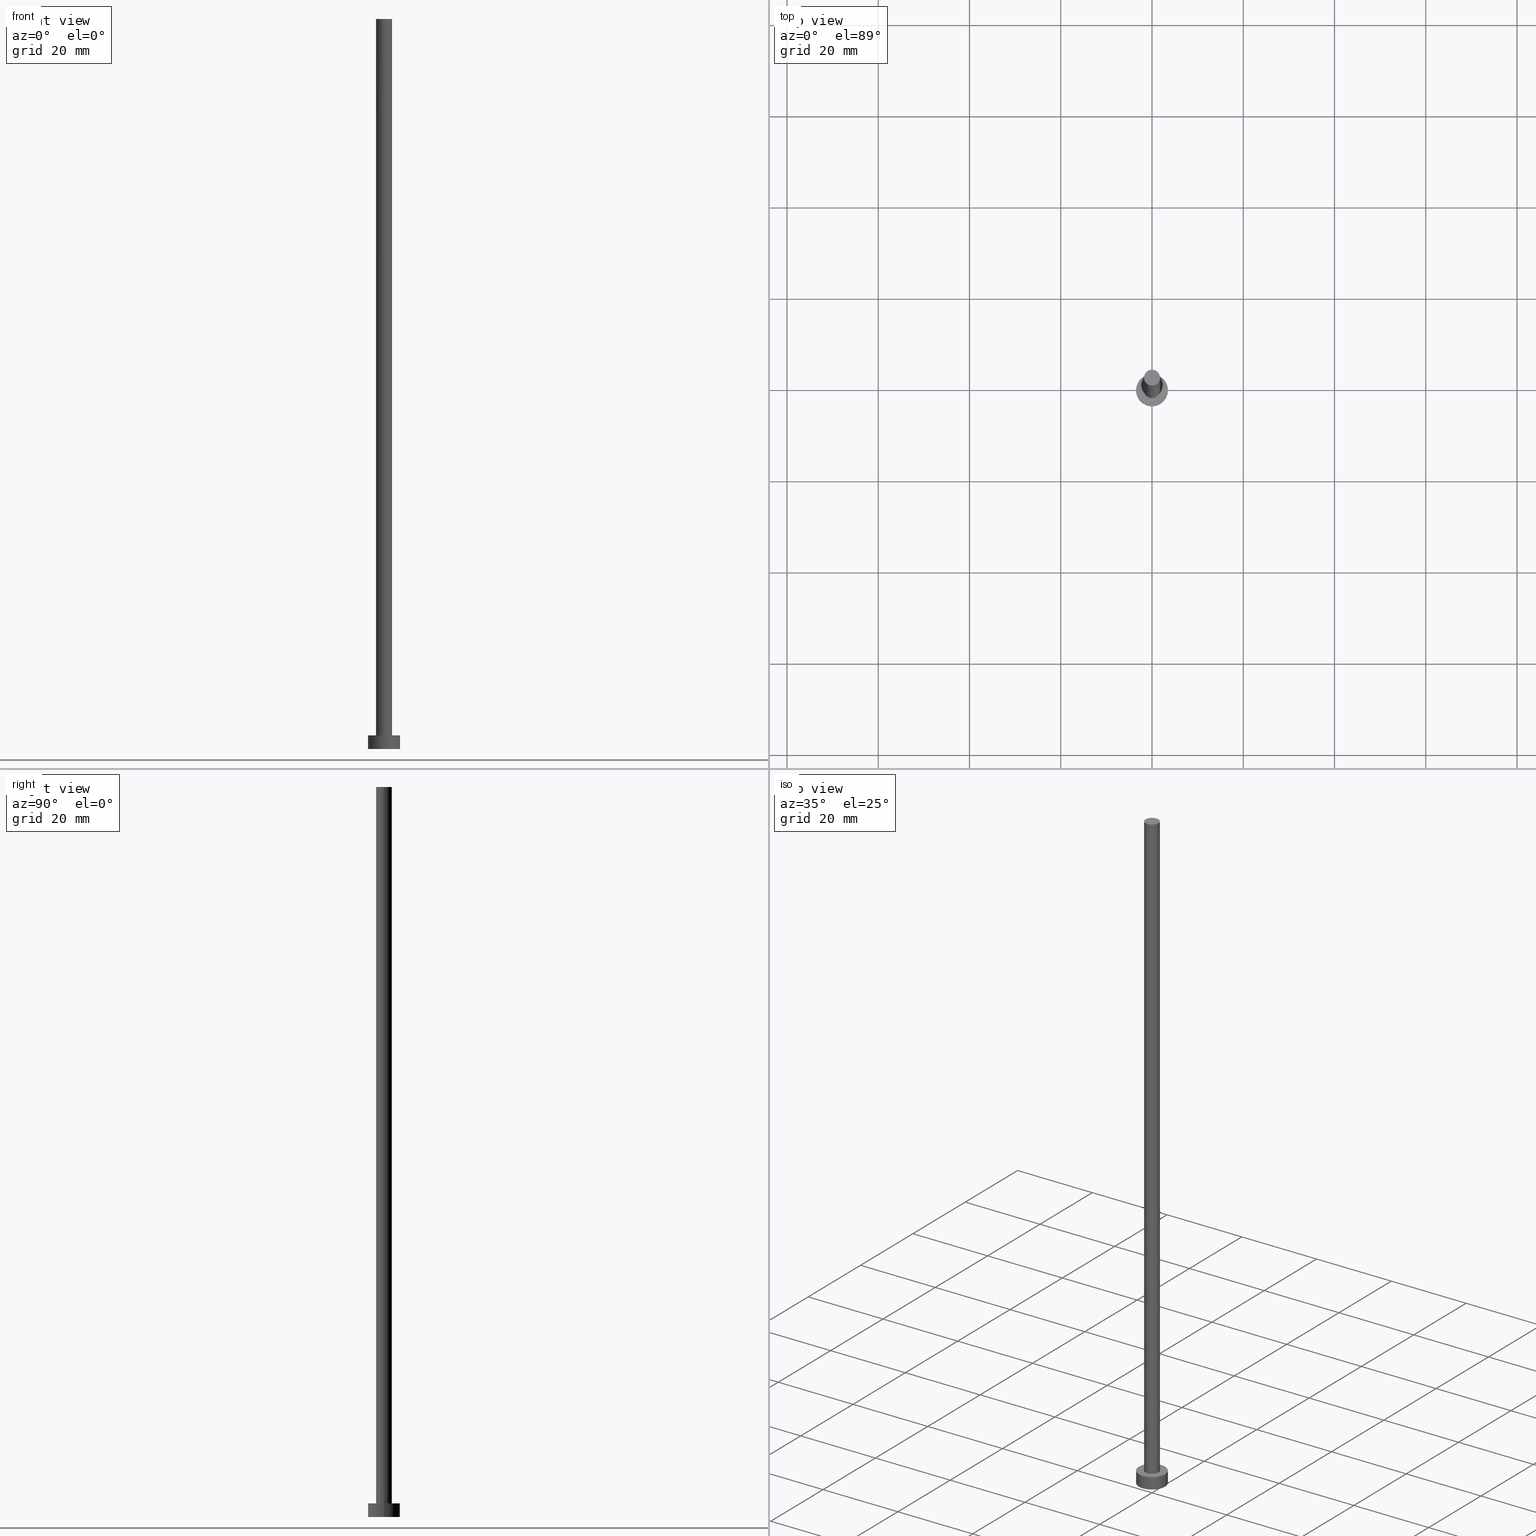
[diagram: canonical four-view strip — front | top / right | iso, engineering-drawing reading convention]
A machine part, canonical four-view strip (front | top / right | iso — engineering-drawing reading convention). The complete STEP part file that produces these views, byte-faithful:
ISO-10303-21;
HEADER;
FILE_DESCRIPTION (( 'STEP AP203' ),
    '1' );
FILE_NAME ('46df.STEP',
    '2023-02-12T12:42:44',
    ( '' ),
    ( '' ),
    'SwSTEP 2.0',
    'SolidWorks 2019',
    '' );
FILE_SCHEMA (( 'CONFIG_CONTROL_DESIGN' ));
ENDSEC;

DATA;
#1 = VERTEX_POINT ( 'NONE', #132 ) ;
#2 = PERSON_AND_ORGANIZATION ( #240, #35 ) ;
#3 = AXIS2_PLACEMENT_3D ( 'NONE', #42, #206, #40 ) ;
#4 = DIRECTION ( 'NONE',  ( 1.000000000000000000, 0.000000000000000000, 0.000000000000000000 ) ) ;
#5 = EDGE_CURVE ( 'NONE', #1, #197, #140, .T. ) ;
#6 = DIRECTION ( 'NONE',  ( -0.000000000000000000, -0.000000000000000000, -1.000000000000000000 ) ) ;
#7 = CARTESIAN_POINT ( 'NONE',  ( 0.000000000000000000, 0.000000000000000000, 160.0000000000000000 ) ) ;
#8 = CIRCLE ( 'NONE', #185, 3.500000000000000444 ) ;
#9 = LINE ( 'NONE', #78, #168 ) ;
#10 = CIRCLE ( 'NONE', #106, 3.500000000000000444 ) ;
#11 = LINE ( 'NONE', #80, #85 ) ;
#12 = APPROVAL ( #142, 'NEUR�EN�' ) ;
#13 = CARTESIAN_POINT ( 'NONE',  ( 0.000000000000000000, 0.000000000000000000, 0.000000000000000000 ) ) ;
#14 = AXIS2_PLACEMENT_3D ( 'NONE', #75, #155, #118 ) ;
#15 = APPROVAL_ROLE ( '' ) ;
#16 = DIRECTION ( 'NONE',  ( 0.000000000000000000, 0.000000000000000000, 1.000000000000000000 ) ) ;
#17 = CC_DESIGN_PERSON_AND_ORGANIZATION_ASSIGNMENT ( #109, #200, ( #245 ) ) ;
#18 = APPROVAL_ROLE ( '' ) ;
#19 = ORIENTED_EDGE ( 'NONE', *, *, #153, .F. ) ;
#20 = AXIS2_PLACEMENT_3D ( 'NONE', #156, #57, #243 ) ;
#21 = ADVANCED_BREP_SHAPE_REPRESENTATION ( '46df', ( #162, #67 ), #88 ) ;
#22 = ORIENTED_EDGE ( 'NONE', *, *, #133, .F. ) ;
#23 = ADVANCED_FACE ( 'NONE', ( #62 ), #226, .T. ) ;
#24 = CARTESIAN_POINT ( 'NONE',  ( 3.500000000000000444, 4.286263797015737088E-16, 3.000000000000000000 ) ) ;
#25 = AXIS2_PLACEMENT_3D ( 'NONE', #7, #139, #45 ) ;
#26 = CARTESIAN_POINT ( 'NONE',  ( 1.750000000000000000, 2.143131898507868297E-16, 160.0000000000000000 ) ) ;
#27 = DIRECTION ( 'NONE',  ( 1.000000000000000000, 0.000000000000000000, 0.000000000000000000 ) ) ;
#28 = CARTESIAN_POINT ( 'NONE',  ( 0.000000000000000000, 0.000000000000000000, 0.000000000000000000 ) ) ;
#29 = CARTESIAN_POINT ( 'NONE',  ( 3.500000000000000444, 4.286263797015737088E-16, 0.000000000000000000 ) ) ;
#30 = CARTESIAN_POINT ( 'NONE',  ( -3.500000000000000444, 0.000000000000000000, 0.000000000000000000 ) ) ;
#31 = ADVANCED_FACE ( 'NONE', ( #137 ), #121, .T. ) ;
#32 = CARTESIAN_POINT ( 'NONE',  ( 0.000000000000000000, 0.000000000000000000, 0.000000000000000000 ) ) ;
#33 = COORDINATED_UNIVERSAL_TIME_OFFSET ( 1, 0, .AHEAD. ) ;
#34 = EDGE_LOOP ( 'NONE', ( #91, #237, #254, #171 ) ) ;
#35 = ORGANIZATION ( 'NEUR�EN�', 'NEUR�EN�', '' ) ;
#36 = APPROVAL ( #196, 'NEUR�EN�' ) ;
#37 = EDGE_LOOP ( 'NONE', ( #177, #202 ) ) ;
#38 = LOCAL_TIME ( 13, 42, 44.00000000000000000, #47 ) ;
#39 = AXIS2_PLACEMENT_3D ( 'NONE', #189, #251, #127 ) ;
#40 = DIRECTION ( 'NONE',  ( 1.000000000000000000, 0.000000000000000000, 0.000000000000000000 ) ) ;
#41 = CLOSED_SHELL ( 'NONE', ( #164, #95, #23, #208, #194, #31, #103 ) ) ;
#42 = CARTESIAN_POINT ( 'NONE',  ( 0.000000000000000000, 0.000000000000000000, 3.000000000000000000 ) ) ;
#43 = DIRECTION ( 'NONE',  ( 0.000000000000000000, 0.000000000000000000, 1.000000000000000000 ) ) ;
#44 = EDGE_CURVE ( 'NONE', #150, #112, #58, .T. ) ;
#45 = DIRECTION ( 'NONE',  ( 1.000000000000000000, 0.000000000000000000, 0.000000000000000000 ) ) ;
#46 = CARTESIAN_POINT ( 'NONE',  ( -1.750000000000000000, 0.000000000000000000, 160.0000000000000000 ) ) ;
#47 = COORDINATED_UNIVERSAL_TIME_OFFSET ( 1, 0, .AHEAD. ) ;
#48 = AXIS2_PLACEMENT_3D ( 'NONE', #135, #43, #4 ) ;
#49 = PLANE ( 'NONE',  #39 ) ;
#50 = PERSON_AND_ORGANIZATION ( #240, #35 ) ;
#51 = ORIENTED_EDGE ( 'NONE', *, *, #99, .T. ) ;
#52 = EDGE_LOOP ( 'NONE', ( #22, #199, #69, #217 ) ) ;
#53 = CALENDAR_DATE ( 2023, 12, 2 ) ;
#54 = EDGE_LOOP ( 'NONE', ( #51, #239 ) ) ;
#55 = CIRCLE ( 'NONE', #141, 1.750000000000000000 ) ;
#56 = DIRECTION ( 'NONE',  ( 1.000000000000000000, 0.000000000000000000, -0.000000000000000000 ) ) ;
#57 = DIRECTION ( 'NONE',  ( -0.000000000000000000, -0.000000000000000000, -1.000000000000000000 ) ) ;
#58 = CIRCLE ( 'NONE', #230, 1.750000000000000000 ) ;
#59 = CARTESIAN_POINT ( 'NONE',  ( 0.000000000000000000, 0.000000000000000000, 3.000000000000000000 ) ) ;
#60 = PRODUCT_RELATED_PRODUCT_CATEGORY ( 'detail', '', ( #187 ) ) ;
#61 = CARTESIAN_POINT ( 'NONE',  ( 1.750000000000000000, 2.143131898507868297E-16, 3.000000000000000000 ) ) ;
#62 = FACE_OUTER_BOUND ( 'NONE', #52, .T. ) ;
#63 = EDGE_CURVE ( 'NONE', #197, #175, #158, .T. ) ;
#64 = APPROVAL_PERSON_ORGANIZATION ( #148, #36, #18 ) ;
#65 = PERSON_AND_ORGANIZATION ( #240, #35 ) ;
#66 = DATE_TIME_ROLE ( 'creation_date' ) ;
#67 = AXIS2_PLACEMENT_3D ( 'NONE', #13, #249, #211 ) ;
#68 = PERSON_AND_ORGANIZATION_ROLE ( 'design_owner' ) ;
#69 = ORIENTED_EDGE ( 'NONE', *, *, #5, .T. ) ;
#70 = CC_DESIGN_APPROVAL ( #36, ( #219 ) ) ;
#71 = VERTEX_POINT ( 'NONE', #46 ) ;
#72 = ORIENTED_EDGE ( 'NONE', *, *, #5, .F. ) ;
#73 = DIRECTION ( 'NONE',  ( 0.000000000000000000, 0.000000000000000000, 1.000000000000000000 ) ) ;
#74 = DIRECTION ( 'NONE',  ( -1.000000000000000000, 0.000000000000000000, 0.000000000000000000 ) ) ;
#75 = CARTESIAN_POINT ( 'NONE',  ( 0.000000000000000000, 0.000000000000000000, 3.000000000000000000 ) ) ;
#76 = AXIS2_PLACEMENT_3D ( 'NONE', #203, #73, #117 ) ;
#77 = APPROVAL_PERSON_ORGANIZATION ( #50, #12, #227 ) ;
#78 = CARTESIAN_POINT ( 'NONE',  ( -1.750000000000000000, 0.000000000000000000, 160.0000000000000000 ) ) ;
#79 = EDGE_CURVE ( 'NONE', #71, #152, #198, .T. ) ;
#80 = CARTESIAN_POINT ( 'NONE',  ( 1.750000000000000000, 2.143131898507868297E-16, 160.0000000000000000 ) ) ;
#81 = FACE_OUTER_BOUND ( 'NONE', #37, .T. ) ;
#82 = COORDINATED_UNIVERSAL_TIME_OFFSET ( 1, 0, .AHEAD. ) ;
#83 = EDGE_CURVE ( 'NONE', #175, #197, #8, .T. ) ;
#84 = PERSON_AND_ORGANIZATION ( #240, #35 ) ;
#85 = VECTOR ( 'NONE', #161, 1000.000000000000000 ) ;
#86 = EDGE_LOOP ( 'NONE', ( #235, #236, #110, #72 ) ) ;
#87 = ORIENTED_EDGE ( 'NONE', *, *, #79, .T. ) ;
#88 =( GEOMETRIC_REPRESENTATION_CONTEXT ( 3 ) GLOBAL_UNCERTAINTY_ASSIGNED_CONTEXT ( ( #234 ) ) GLOBAL_UNIT_ASSIGNED_CONTEXT ( ( #101, #122, #192 ) ) REPRESENTATION_CONTEXT ( 'NONE', 'WORKASPACE' ) );
#89 = SECURITY_CLASSIFICATION_LEVEL ( 'unclassified' ) ;
#90 = EDGE_LOOP ( 'NONE', ( #87, #195 ) ) ;
#91 = ORIENTED_EDGE ( 'NONE', *, *, #188, .F. ) ;
#92 = FACE_OUTER_BOUND ( 'NONE', #86, .T. ) ;
#93 = LOCAL_TIME ( 13, 42, 44.00000000000000000, #176 ) ;
#94 = FACE_OUTER_BOUND ( 'NONE', #149, .T. ) ;
#95 = ADVANCED_FACE ( 'NONE', ( #92 ), #186, .T. ) ;
#96 = DIRECTION ( 'NONE',  ( 1.000000000000000000, 0.000000000000000000, 0.000000000000000000 ) ) ;
#97 = DIRECTION ( 'NONE',  ( 0.000000000000000000, 0.000000000000000000, 1.000000000000000000 ) ) ;
#98 = LOCAL_TIME ( 13, 42, 44.00000000000000000, #82 ) ;
#99 = EDGE_CURVE ( 'NONE', #1, #111, #10, .T. ) ;
#100 = LINE ( 'NONE', #114, #231 ) ;
#101 =( LENGTH_UNIT ( ) NAMED_UNIT ( * ) SI_UNIT ( .MILLI., .METRE. ) );
#102 = DATE_AND_TIME ( #209, #38 ) ;
#103 = ADVANCED_FACE ( 'NONE', ( #183 ), #246, .T. ) ;
#104 = DATE_AND_TIME ( #166, #98 ) ;
#105 = DIRECTION ( 'NONE',  ( 0.000000000000000000, 0.000000000000000000, 1.000000000000000000 ) ) ;
#106 = AXIS2_PLACEMENT_3D ( 'NONE', #205, #97, #96 ) ;
#107 = CC_DESIGN_DATE_AND_TIME_ASSIGNMENT ( #173, #170, ( #219 ) ) ;
#108 = CALENDAR_DATE ( 2023, 12, 2 ) ;
#109 = PERSON_AND_ORGANIZATION ( #240, #35 ) ;
#110 = ORIENTED_EDGE ( 'NONE', *, *, #83, .T. ) ;
#111 = VERTEX_POINT ( 'NONE', #24 ) ;
#112 = VERTEX_POINT ( 'NONE', #134 ) ;
#113 = ORIENTED_EDGE ( 'NONE', *, *, #215, .F. ) ;
#114 = CARTESIAN_POINT ( 'NONE',  ( 3.500000000000000444, 4.286263797015737088E-16, 3.000000000000000000 ) ) ;
#115 = PRODUCT_DEFINITION ( 'NEZN�M�', '', #245, #147 ) ;
#116 = CARTESIAN_POINT ( 'NONE',  ( 0.000000000000000000, 0.000000000000000000, 160.0000000000000000 ) ) ;
#117 = DIRECTION ( 'NONE',  ( 1.000000000000000000, 0.000000000000000000, 0.000000000000000000 ) ) ;
#118 = DIRECTION ( 'NONE',  ( -1.000000000000000000, 0.000000000000000000, 0.000000000000000000 ) ) ;
#119 = AXIS2_PLACEMENT_3D ( 'NONE', #32, #16, #145 ) ;
#120 = CC_DESIGN_PERSON_AND_ORGANIZATION_ASSIGNMENT ( #250, #143, ( #115 ) ) ;
#121 = CYLINDRICAL_SURFACE ( 'NONE', #20, 1.750000000000000000 ) ;
#122 =( NAMED_UNIT ( * ) PLANE_ANGLE_UNIT ( ) SI_UNIT ( $, .RADIAN. ) );
#123 = DATE_AND_TIME ( #228, #253 ) ;
#124 = APPROVAL ( #229, 'NEUR�EN�' ) ;
#125 = AXIS2_PLACEMENT_3D ( 'NONE', #244, #221, #56 ) ;
#126 = PLANE ( 'NONE',  #119 ) ;
#127 = DIRECTION ( 'NONE',  ( 1.000000000000000000, 0.000000000000000000, -0.000000000000000000 ) ) ;
#128 = EDGE_CURVE ( 'NONE', #111, #1, #154, .T. ) ;
#129 = ORIENTED_EDGE ( 'NONE', *, *, #146, .F. ) ;
#130 = ORIENTED_EDGE ( 'NONE', *, *, #44, .T. ) ;
#131 = CC_DESIGN_SECURITY_CLASSIFICATION ( #219, ( #245 ) ) ;
#132 = CARTESIAN_POINT ( 'NONE',  ( -3.500000000000000444, 0.000000000000000000, 3.000000000000000000 ) ) ;
#133 = EDGE_CURVE ( 'NONE', #111, #175, #100, .T. ) ;
#134 = CARTESIAN_POINT ( 'NONE',  ( -1.750000000000000000, 0.000000000000000000, 3.000000000000000000 ) ) ;
#135 = CARTESIAN_POINT ( 'NONE',  ( 0.000000000000000000, 0.000000000000000000, 0.000000000000000000 ) ) ;
#136 = LOCAL_TIME ( 13, 42, 44.00000000000000000, #238 ) ;
#137 = FACE_OUTER_BOUND ( 'NONE', #34, .T. ) ;
#138 = PRODUCT_DEFINITION_SHAPE ( 'NONE', 'NONE',  #115 ) ;
#139 = DIRECTION ( 'NONE',  ( 0.000000000000000000, 0.000000000000000000, 1.000000000000000000 ) ) ;
#140 = LINE ( 'NONE', #224, #222 ) ;
#141 = AXIS2_PLACEMENT_3D ( 'NONE', #210, #105, #214 ) ;
#142 = APPROVAL_STATUS ( 'not_yet_approved' ) ;
#143 = PERSON_AND_ORGANIZATION_ROLE ( 'creator' ) ;
#144 = CIRCLE ( 'NONE', #25, 1.750000000000000000 ) ;
#145 = DIRECTION ( 'NONE',  ( 1.000000000000000000, 0.000000000000000000, -0.000000000000000000 ) ) ;
#146 = EDGE_CURVE ( 'NONE', #71, #112, #9, .T. ) ;
#147 = DESIGN_CONTEXT ( 'detailed design', #207, 'design' ) ;
#148 = PERSON_AND_ORGANIZATION ( #240, #35 ) ;
#149 = EDGE_LOOP ( 'NONE', ( #19, #201, #130, #129 ) ) ;
#150 = VERTEX_POINT ( 'NONE', #61 ) ;
#151 = SHAPE_DEFINITION_REPRESENTATION ( #138, #21 ) ;
#152 = VERTEX_POINT ( 'NONE', #26 ) ;
#153 = EDGE_CURVE ( 'NONE', #152, #71, #144, .T. ) ;
#154 = CIRCLE ( 'NONE', #3, 3.500000000000000444 ) ;
#155 = DIRECTION ( 'NONE',  ( -0.000000000000000000, -0.000000000000000000, -1.000000000000000000 ) ) ;
#156 = CARTESIAN_POINT ( 'NONE',  ( 0.000000000000000000, 0.000000000000000000, 160.0000000000000000 ) ) ;
#157 = CYLINDRICAL_SURFACE ( 'NONE', #174, 1.750000000000000000 ) ;
#158 = CIRCLE ( 'NONE', #48, 3.500000000000000444 ) ;
#159 = DIRECTION ( 'NONE',  ( -0.000000000000000000, -0.000000000000000000, -1.000000000000000000 ) ) ;
#160 = CC_DESIGN_PERSON_AND_ORGANIZATION_ASSIGNMENT ( #2, #216, ( #219 ) ) ;
#161 = DIRECTION ( 'NONE',  ( -0.000000000000000000, -0.000000000000000000, -1.000000000000000000 ) ) ;
#162 = MANIFOLD_SOLID_BREP ( 'P�idat vysunut�m3', #41 ) ;
#163 = MECHANICAL_CONTEXT ( 'NONE', #182, 'mechanical' ) ;
#164 = ADVANCED_FACE ( 'NONE', ( #94 ), #157, .T. ) ;
#165 = FACE_BOUND ( 'NONE', #255, .T. ) ;
#166 = CALENDAR_DATE ( 2023, 12, 2 ) ;
#167 = PERSON_AND_ORGANIZATION_ROLE ( 'creator' ) ;
#168 = VECTOR ( 'NONE', #159, 1000.000000000000000 ) ;
#169 = APPLICATION_PROTOCOL_DEFINITION ( 'international standard', 'config_control_design', 1994, #182 ) ;
#170 = DATE_TIME_ROLE ( 'classification_date' ) ;
#171 = ORIENTED_EDGE ( 'NONE', *, *, #215, .T. ) ;
#172 = AXIS2_PLACEMENT_3D ( 'NONE', #180, #204, #179 ) ;
#173 = DATE_AND_TIME ( #53, #93 ) ;
#174 = AXIS2_PLACEMENT_3D ( 'NONE', #116, #6, #74 ) ;
#175 = VERTEX_POINT ( 'NONE', #29 ) ;
#176 = COORDINATED_UNIVERSAL_TIME_OFFSET ( 1, 0, .AHEAD. ) ;
#177 = ORIENTED_EDGE ( 'NONE', *, *, #63, .F. ) ;
#178 = CC_DESIGN_PERSON_AND_ORGANIZATION_ASSIGNMENT ( #84, #167, ( #245 ) ) ;
#179 = DIRECTION ( 'NONE',  ( -1.000000000000000000, 0.000000000000000000, 0.000000000000000000 ) ) ;
#180 = CARTESIAN_POINT ( 'NONE',  ( 0.000000000000000000, 0.000000000000000000, 3.000000000000000000 ) ) ;
#181 = DIRECTION ( 'NONE',  ( -0.000000000000000000, -0.000000000000000000, -1.000000000000000000 ) ) ;
#182 = APPLICATION_CONTEXT ( 'configuration controlled 3d designs of mechanical parts and assemblies' ) ;
#183 = FACE_OUTER_BOUND ( 'NONE', #90, .T. ) ;
#184 = CC_DESIGN_APPROVAL ( #12, ( #115 ) ) ;
#185 = AXIS2_PLACEMENT_3D ( 'NONE', #28, #225, #27 ) ;
#186 = CYLINDRICAL_SURFACE ( 'NONE', #14, 3.500000000000000444 ) ;
#187 = PRODUCT ( '46df', '46df', '', ( #163 ) ) ;
#188 = EDGE_CURVE ( 'NONE', #152, #150, #11, .T. ) ;
#189 = CARTESIAN_POINT ( 'NONE',  ( 0.000000000000000000, 0.000000000000000000, 3.000000000000000000 ) ) ;
#190 = PERSON_AND_ORGANIZATION ( #240, #35 ) ;
#191 = APPROVAL_DATE_TIME ( #104, #124 ) ;
#192 =( NAMED_UNIT ( * ) SI_UNIT ( $, .STERADIAN. ) SOLID_ANGLE_UNIT ( ) );
#193 = APPROVAL_DATE_TIME ( #220, #36 ) ;
#194 = ADVANCED_FACE ( 'NONE', ( #81 ), #126, .F. ) ;
#195 = ORIENTED_EDGE ( 'NONE', *, *, #153, .T. ) ;
#196 = APPROVAL_STATUS ( 'not_yet_approved' ) ;
#197 = VERTEX_POINT ( 'NONE', #30 ) ;
#198 = CIRCLE ( 'NONE', #76, 1.750000000000000000 ) ;
#199 = ORIENTED_EDGE ( 'NONE', *, *, #99, .F. ) ;
#200 = PERSON_AND_ORGANIZATION_ROLE ( 'design_supplier' ) ;
#201 = ORIENTED_EDGE ( 'NONE', *, *, #188, .T. ) ;
#202 = ORIENTED_EDGE ( 'NONE', *, *, #83, .F. ) ;
#203 = CARTESIAN_POINT ( 'NONE',  ( 0.000000000000000000, 0.000000000000000000, 160.0000000000000000 ) ) ;
#204 = DIRECTION ( 'NONE',  ( -0.000000000000000000, -0.000000000000000000, -1.000000000000000000 ) ) ;
#205 = CARTESIAN_POINT ( 'NONE',  ( 0.000000000000000000, 0.000000000000000000, 3.000000000000000000 ) ) ;
#206 = DIRECTION ( 'NONE',  ( 0.000000000000000000, 0.000000000000000000, 1.000000000000000000 ) ) ;
#207 = APPLICATION_CONTEXT ( 'configuration controlled 3d designs of mechanical parts and assemblies' ) ;
#208 = ADVANCED_FACE ( 'NONE', ( #165, #232 ), #49, .T. ) ;
#209 = CALENDAR_DATE ( 2023, 12, 2 ) ;
#210 = CARTESIAN_POINT ( 'NONE',  ( 0.000000000000000000, 0.000000000000000000, 3.000000000000000000 ) ) ;
#211 = DIRECTION ( 'NONE',  ( 1.000000000000000000, 0.000000000000000000, 0.000000000000000000 ) ) ;
#212 = APPROVAL_PERSON_ORGANIZATION ( #190, #124, #15 ) ;
#213 = APPROVAL_DATE_TIME ( #102, #12 ) ;
#214 = DIRECTION ( 'NONE',  ( 1.000000000000000000, 0.000000000000000000, 0.000000000000000000 ) ) ;
#215 = EDGE_CURVE ( 'NONE', #112, #150, #55, .T. ) ;
#216 = PERSON_AND_ORGANIZATION_ROLE ( 'classification_officer' ) ;
#217 = ORIENTED_EDGE ( 'NONE', *, *, #63, .T. ) ;
#218 = ORIENTED_EDGE ( 'NONE', *, *, #44, .F. ) ;
#219 = SECURITY_CLASSIFICATION ( '', '', #89 ) ;
#220 = DATE_AND_TIME ( #108, #136 ) ;
#221 = DIRECTION ( 'NONE',  ( 0.000000000000000000, 0.000000000000000000, 1.000000000000000000 ) ) ;
#222 = VECTOR ( 'NONE', #181, 1000.000000000000000 ) ;
#223 = DIRECTION ( 'NONE',  ( 1.000000000000000000, 0.000000000000000000, 0.000000000000000000 ) ) ;
#224 = CARTESIAN_POINT ( 'NONE',  ( -3.500000000000000444, 0.000000000000000000, 3.000000000000000000 ) ) ;
#225 = DIRECTION ( 'NONE',  ( 0.000000000000000000, 0.000000000000000000, 1.000000000000000000 ) ) ;
#226 = CYLINDRICAL_SURFACE ( 'NONE', #172, 3.500000000000000444 ) ;
#227 = APPROVAL_ROLE ( '' ) ;
#228 = CALENDAR_DATE ( 2023, 12, 2 ) ;
#229 = APPROVAL_STATUS ( 'not_yet_approved' ) ;
#230 = AXIS2_PLACEMENT_3D ( 'NONE', #59, #241, #223 ) ;
#231 = VECTOR ( 'NONE', #247, 1000.000000000000000 ) ;
#232 = FACE_OUTER_BOUND ( 'NONE', #54, .T. ) ;
#233 = APPLICATION_PROTOCOL_DEFINITION ( 'international standard', 'config_control_design', 1994, #207 ) ;
#234 = UNCERTAINTY_MEASURE_WITH_UNIT (LENGTH_MEASURE( 1.000000000000000082E-05 ), #101, 'distance_accuracy_value', 'NONE');
#235 = ORIENTED_EDGE ( 'NONE', *, *, #128, .F. ) ;
#236 = ORIENTED_EDGE ( 'NONE', *, *, #133, .T. ) ;
#237 = ORIENTED_EDGE ( 'NONE', *, *, #79, .F. ) ;
#238 = COORDINATED_UNIVERSAL_TIME_OFFSET ( 1, 0, .AHEAD. ) ;
#239 = ORIENTED_EDGE ( 'NONE', *, *, #128, .T. ) ;
#240 = PERSON ( 'NEUR�EN�', 'NEUR�EN�', 'NEUR�EN�', ('NEUR�EN�'), ('NEUR�EN�'), ('NEUR�EN�') ) ;
#241 = DIRECTION ( 'NONE',  ( 0.000000000000000000, 0.000000000000000000, 1.000000000000000000 ) ) ;
#242 = CC_DESIGN_PERSON_AND_ORGANIZATION_ASSIGNMENT ( #65, #68, ( #187 ) ) ;
#243 = DIRECTION ( 'NONE',  ( -1.000000000000000000, 0.000000000000000000, 0.000000000000000000 ) ) ;
#244 = CARTESIAN_POINT ( 'NONE',  ( 0.000000000000000000, 0.000000000000000000, 160.0000000000000000 ) ) ;
#245 = PRODUCT_DEFINITION_FORMATION_WITH_SPECIFIED_SOURCE ( 'LIBOVOLN�', '', #187, .NOT_KNOWN. ) ;
#246 = PLANE ( 'NONE',  #125 ) ;
#247 = DIRECTION ( 'NONE',  ( -0.000000000000000000, -0.000000000000000000, -1.000000000000000000 ) ) ;
#248 = CC_DESIGN_DATE_AND_TIME_ASSIGNMENT ( #123, #66, ( #115 ) ) ;
#249 = DIRECTION ( 'NONE',  ( 0.000000000000000000, 0.000000000000000000, 1.000000000000000000 ) ) ;
#250 = PERSON_AND_ORGANIZATION ( #240, #35 ) ;
#251 = DIRECTION ( 'NONE',  ( 0.000000000000000000, 0.000000000000000000, 1.000000000000000000 ) ) ;
#252 = CC_DESIGN_APPROVAL ( #124, ( #245 ) ) ;
#253 = LOCAL_TIME ( 13, 42, 44.00000000000000000, #33 ) ;
#254 = ORIENTED_EDGE ( 'NONE', *, *, #146, .T. ) ;
#255 = EDGE_LOOP ( 'NONE', ( #113, #218 ) ) ;
ENDSEC;
END-ISO-10303-21;
